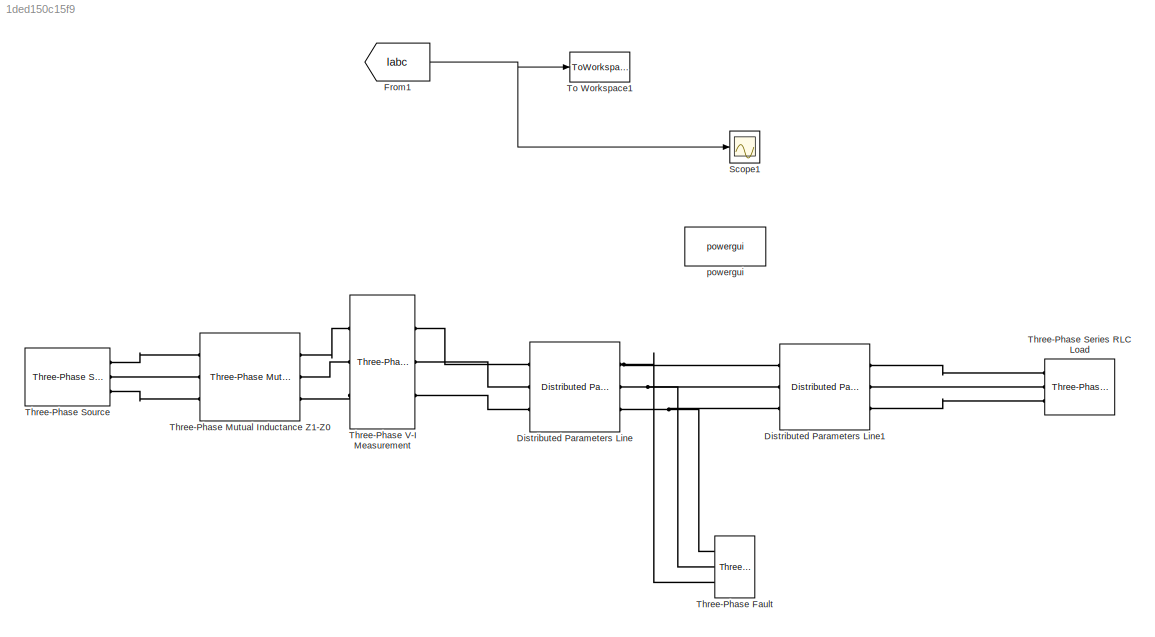
MODEL slx_1ded150c15f9
KIND model
CONFIG AbsTol = auto
CONFIG EnableMultiTasking = off
CONFIG FixedStep = auto
CONFIG MaxStep = 1e-4
CONFIG MinStep = auto
CONFIG RelTol = 1e-3
CONFIG SampleTimeConstraint = Unconstrained
CONFIG Solver = VariableStepAuto
CONFIG SolverName = VariableStepAuto
CONFIG StartTime = 0.0
CONFIG StopTime = 0.060
BLOCK [Reference] Distributed Parameters Line  REF=powerlib/Elements/Distributed Parameters Line
  Ports = [0, 0, 0, 0, 0, 3, 3]
  SourceBlock = powerlib/Elements/Distributed Parameters Line
  SourceProductBaseCode = PS
  SourceProductName = Simscape Power Systems
  SourceType = Distributed Parameters Line
BLOCK [Reference] Distributed Parameters Line1  REF=powerlib/Elements/Distributed Parameters Line
  Ports = [0, 0, 0, 0, 0, 3, 3]
  SourceBlock = powerlib/Elements/Distributed Parameters Line
  SourceProductBaseCode = PS
  SourceProductName = Simscape Power Systems
  SourceType = Distributed Parameters Line
BLOCK [From] From1
  GotoTag = Iabc
  TagVisibility = global
BLOCK [Scope] Scope1
  NumInputPorts = 1
  Ports = [1]
  ScopeSpecificationString = Simulink.scopes.TimeScopeBlockCfg('CurrentConfiguration', extmgr.ConfigurationSet(extmgr.Configuration('Core','General UI',true),extmgr.Configuration('Core','Source UI',true),extmgr.Configuration('Sources','WiredSimulink',true,'DataLoggingVariableName','ScopeData1'),extmgr.Configuration('Visuals','Time Domain',true,'SerializedDisplays',{struct('MinYLimReal','-612.42528','MaxYLimReal','678.07328','...<+1438ch>
BLOCK [Reference] Three-Phase Fault  REF=powerlib/Elements/Three-Phase Fault
  Ports = [0, 0, 0, 0, 0, 3]
  SourceBlock = powerlib/Elements/Three-Phase Fault
  SourceProductBaseCode = PS
  SourceProductName = Simscape Power Systems
  SourceType = Three-Phase Fault
BLOCK [Reference] Three-Phase Mutual Inductance Z1-Z0  REF=powerlib/Elements/Three-Phase
Mutual Inductance
Z1-Z0
  AttributesFormatString = \n
  Ports = [0, 0, 0, 0, 0, 3, 3]
  SourceBlock = powerlib/Elements/Three-Phase\nMutual Inductance\nZ1-Z0
  SourceProductBaseCode = PS
  SourceProductName = Simscape Power Systems
  SourceType = Three-Phase Mutual Inductance Z1-Z0
BLOCK [Reference] Three-Phase Series RLC Load  REF=powerlib/Elements/Three-Phase
Series RLC Load
  AttributesFormatString = \n
  Ports = [0, 0, 0, 0, 0, 3]
  SourceBlock = powerlib/Elements/Three-Phase\nSeries RLC Load
  SourceProductBaseCode = PS
  SourceProductName = Simscape Power Systems
  SourceType = Three-Phase Series RLC Load
BLOCK [Reference] Three-Phase Source  REF=powerlib/Electrical
Sources/Three-Phase Source
  Ports = [0, 0, 0, 0, 0, 0, 3]
  SourceBlock = powerlib/Electrical\nSources/Three-Phase Source
  SourceProductBaseCode = PS
  SourceProductName = Simscape Power Systems
  SourceType = Three-Phase Source
BLOCK [Reference] Three-Phase V-I Measurement  REF=powerlib/Measurements/Three-Phase
V-I Measurement
  Ports = [0, 0, 0, 0, 0, 3, 3]
  SourceBlock = powerlib/Measurements/Three-Phase\nV-I Measurement
  SourceProductBaseCode = PS
  SourceProductName = Simscape Power Systems
  SourceType = Three-Phase VI Measurement
BLOCK [ToWorkspace] To Workspace1
  FixptAsFi = on
  MaxDataPoints = inf
  Ports = [1]
  SampleTime = 0.001
  Save2DSignal = 3-D array (concatenate along third dimension)
  SaveFormat = Timeseries
  VariableName = iabc
BLOCK [Reference] powergui  REF=powerlib/powergui
  Ports = []
  Priority = 1
  SourceBlock = powerlib/powergui
  SourceProductBaseCode = PS
  SourceProductName = Simscape Power Systems
  SourceType = PSB option menu block
NET From1:1 -> Scope1:1, To Workspace1:1
PNET net1: Distributed Parameters Line1:LConn1 -- Distributed Parameters Line:RConn1 -- Three-Phase Fault:LConn3
PNET net2: Distributed Parameters Line1:LConn2 -- Distributed Parameters Line:RConn2 -- Three-Phase Fault:LConn2
PNET net3: Distributed Parameters Line1:LConn3 -- Distributed Parameters Line:RConn3 -- Three-Phase Fault:LConn1
PLINE Distributed Parameters Line1:RConn1 -- Three-Phase Series RLC Load:LConn1
PLINE Distributed Parameters Line1:RConn2 -- Three-Phase Series RLC Load:LConn2
PLINE Distributed Parameters Line1:RConn3 -- Three-Phase Series RLC Load:LConn3
PLINE Distributed Parameters Line:LConn1 -- Three-Phase V-I Measurement:RConn1
PLINE Distributed Parameters Line:LConn2 -- Three-Phase V-I Measurement:RConn2
PLINE Distributed Parameters Line:LConn3 -- Three-Phase V-I Measurement:RConn3
PLINE Three-Phase Mutual Inductance Z1-Z0:LConn1 -- Three-Phase Source:RConn1
PLINE Three-Phase Mutual Inductance Z1-Z0:LConn2 -- Three-Phase Source:RConn2
PLINE Three-Phase Mutual Inductance Z1-Z0:LConn3 -- Three-Phase Source:RConn3
PLINE Three-Phase Mutual Inductance Z1-Z0:RConn1 -- Three-Phase V-I Measurement:LConn1
PLINE Three-Phase Mutual Inductance Z1-Z0:RConn2 -- Three-Phase V-I Measurement:LConn2
PLINE Three-Phase Mutual Inductance Z1-Z0:RConn3 -- Three-Phase V-I Measurement:LConn3
note: NET lines group one-source signal fan-out (src -> all destinations, sorted); 1:1 wires keep LINE; PNET lines group multi-terminal physical nets as a canonical sorted terminal list (undirected conserving connections); 2-terminal nets keep the pairwise PLINE form
